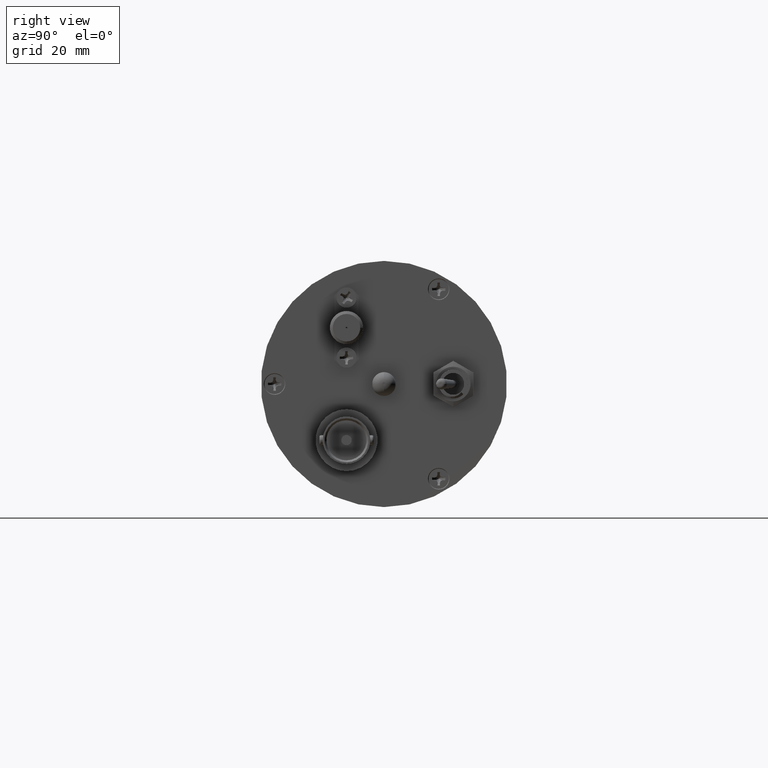
[diagram: clean part render]
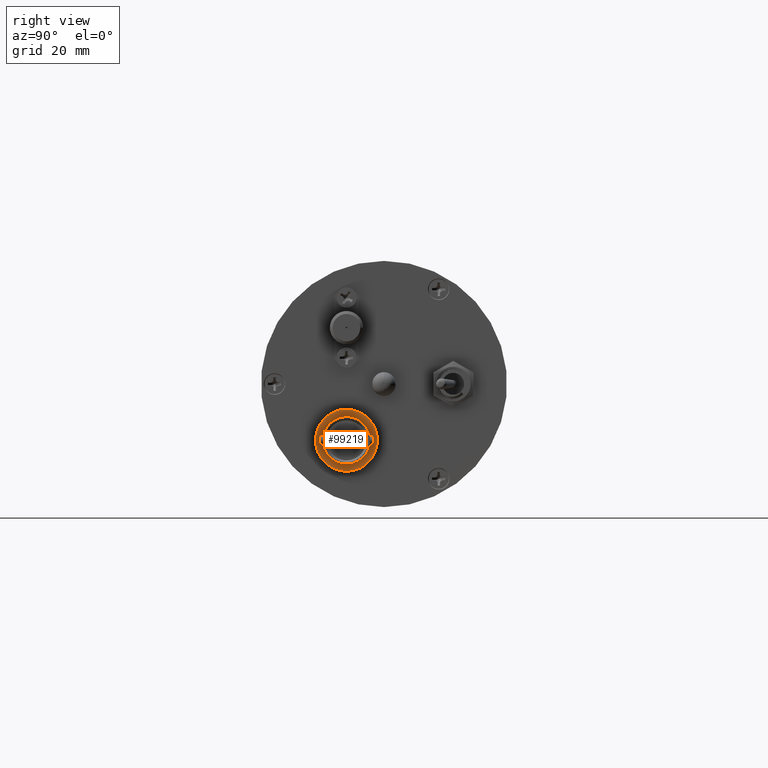
[diagram: same view with one face highlighted and labeled with its STEP entity id]
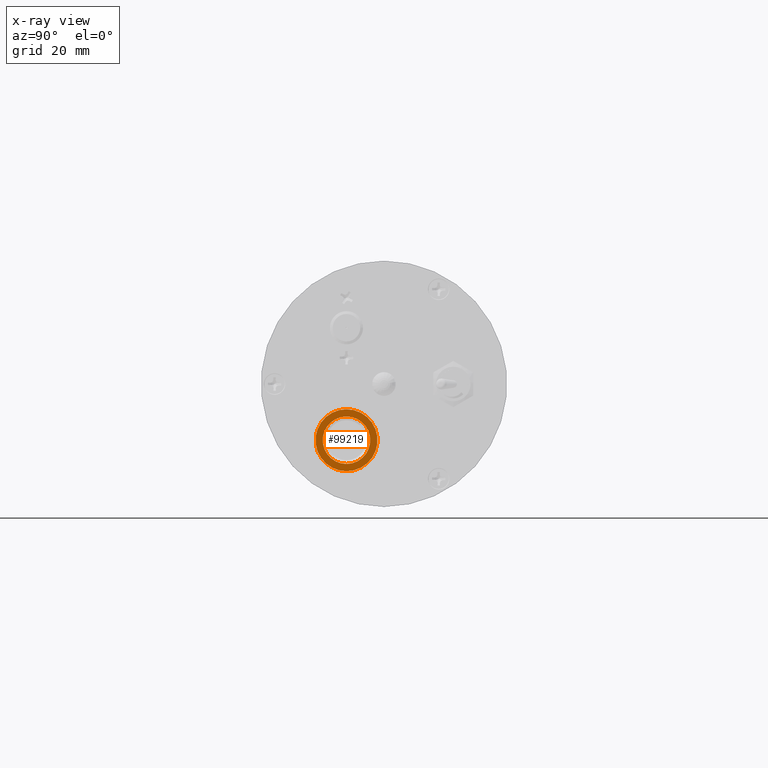
[diagram: x-ray of the same camera — body ghosted, the highlighted face saturated]
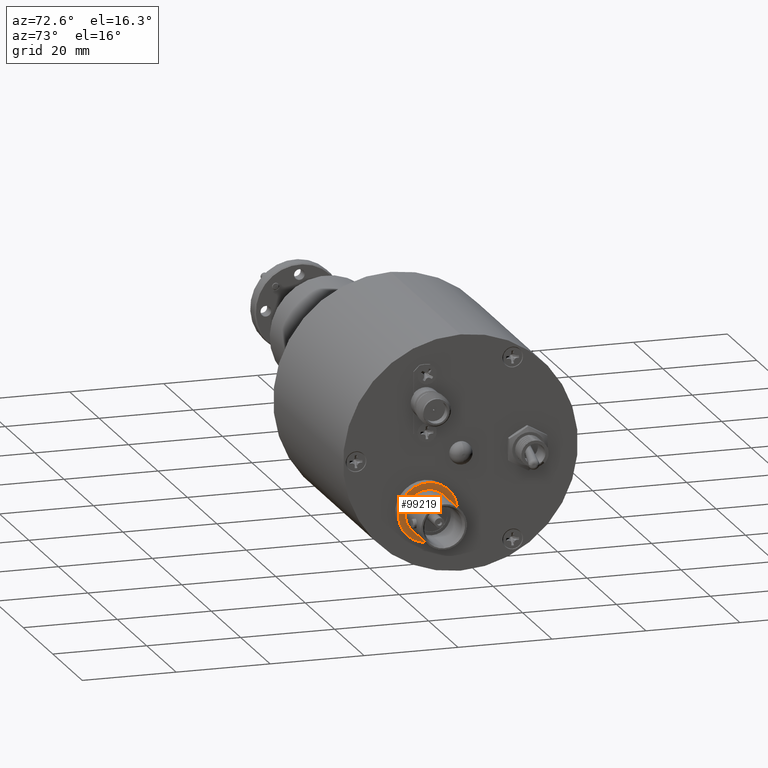
[diagram: same view with one face highlighted and labeled with its STEP entity id]
A machine part, right view. The second image highlights one B-rep face of the part: STEP entity #99219.
The next image is the same camera in x-ray: the body ghosted, the highlighted face saturated — about 0% of this face is hidden behind the body in this view.
A second angle (auxiliary view) of the same face is appended — the face is thin or edge-on in the first view.
In plain terms, the highlighted planar face has unit normal (1, -0, -0).
Its self-contained STEP definition (entity closure, byte-faithful):
#7550 = AXIS2_PLACEMENT_3D ( 'NONE', #43912, #60285, #11350 ) ;
#8683 = CARTESIAN_POINT ( 'NONE',  ( 56.62160839963394900, 27.16858904316375600, 18.90414442233091200 ) ) ;
#10347 = VERTEX_POINT ( 'NONE', #82108 ) ;
#11350 = DIRECTION ( 'NONE',  ( 0.0000000000000000000, 0.0000000000000000000, -1.000000000000000000 ) ) ;
#15147 = CIRCLE ( 'NONE', #104350, 4.826000000000000500 ) ;
#16058 = AXIS2_PLACEMENT_3D ( 'NONE', #69744, #69388, #84924 ) ;
#17792 = EDGE_LOOP ( 'NONE', ( #58907, #63210 ) ) ;
#19882 = EDGE_CURVE ( 'NONE', #10347, #94801, #72417, .T. ) ;
#21811 = DIRECTION ( 'NONE',  ( 0.0000000000000000000, 0.0000000000000000000, -1.000000000000000000 ) ) ;
#25808 = EDGE_CURVE ( 'NONE', #94801, #10347, #29337, .T. ) ;
#25886 = DIRECTION ( 'NONE',  ( 0.0000000000000000000, 0.0000000000000000000, -1.000000000000000000 ) ) ;
#27679 = DIRECTION ( 'NONE',  ( -1.000000000000000000, 2.775557561562890100E-017, -1.683656803805726100E-033 ) ) ;
#29337 = CIRCLE ( 'NONE', #7550, 6.294755000000003000 ) ;
#31894 = CARTESIAN_POINT ( 'NONE',  ( 56.62160839963394900, 27.16858904316375600, 25.19889942233091400 ) ) ;
#34734 = AXIS2_PLACEMENT_3D ( 'NONE', #31894, #71671, #38994 ) ;
#36413 = CIRCLE ( 'NONE', #34734, 4.826000000000000500 ) ;
#37193 = VERTEX_POINT ( 'NONE', #48535 ) ;
#38994 = DIRECTION ( 'NONE',  ( 0.0000000000000000000, 0.0000000000000000000, -1.000000000000000000 ) ) ;
#39092 = AXIS2_PLACEMENT_3D ( 'NONE', #84727, #27679, #25886 ) ;
#43912 = CARTESIAN_POINT ( 'NONE',  ( 56.62160839963394900, 27.16858904316375600, 25.19889942233091400 ) ) ;
#45177 = PLANE ( 'NONE',  #16058 ) ;
#48535 = CARTESIAN_POINT ( 'NONE',  ( 56.62160839963394900, 27.16858904316375600, 30.02489942233091500 ) ) ;
#58907 = ORIENTED_EDGE ( 'NONE', *, *, #62246, .T. ) ;
#60285 = DIRECTION ( 'NONE',  ( -1.000000000000000000, 2.775557561562890100E-017, -1.683656803805726100E-033 ) ) ;
#62246 = EDGE_CURVE ( 'NONE', #89553, #37193, #36413, .T. ) ;
#62285 = DIRECTION ( 'NONE',  ( -1.000000000000000000, 2.775557561562890100E-017, -1.683656803805726100E-033 ) ) ;
#63210 = ORIENTED_EDGE ( 'NONE', *, *, #103711, .T. ) ;
#69388 = DIRECTION ( 'NONE',  ( 1.000000000000000000, -2.775557561562890100E-017, -2.244875738407634100E-033 ) ) ;
#69744 = CARTESIAN_POINT ( 'NONE',  ( 56.62160839963394900, 27.16858904316375600, 25.19889942233091400 ) ) ;
#71671 = DIRECTION ( 'NONE',  ( -1.000000000000000000, 2.775557561562890100E-017, -1.683656803805726100E-033 ) ) ;
#72417 = CIRCLE ( 'NONE', #39092, 6.294755000000003000 ) ;
#72837 = ORIENTED_EDGE ( 'NONE', *, *, #25808, .F. ) ;
#73036 = FACE_BOUND ( 'NONE', #17792, .T. ) ;
#82108 = CARTESIAN_POINT ( 'NONE',  ( 56.62160839963394900, 27.16858904316375600, 31.49365442233091600 ) ) ;
#83363 = ORIENTED_EDGE ( 'NONE', *, *, #19882, .F. ) ;
#84727 = CARTESIAN_POINT ( 'NONE',  ( 56.62160839963394900, 27.16858904316375600, 25.19889942233091400 ) ) ;
#84924 = DIRECTION ( 'NONE',  ( -1.683656803805726100E-033, 2.022004307797137000E-017, -1.000000000000000000 ) ) ;
#89553 = VERTEX_POINT ( 'NONE', #100561 ) ;
#91092 = EDGE_LOOP ( 'NONE', ( #72837, #83363 ) ) ;
#94801 = VERTEX_POINT ( 'NONE', #8683 ) ;
#97039 = FACE_OUTER_BOUND ( 'NONE', #91092, .T. ) ;
#99219 = ADVANCED_FACE ( 'NONE', ( #73036, #97039 ), #45177, .T. ) ;
#100561 = CARTESIAN_POINT ( 'NONE',  ( 56.62160839963394900, 27.16858904316375600, 20.37289942233091400 ) ) ;
#102638 = CARTESIAN_POINT ( 'NONE',  ( 56.62160839963394900, 27.16858904316375600, 25.19889942233091400 ) ) ;
#103711 = EDGE_CURVE ( 'NONE', #37193, #89553, #15147, .T. ) ;
#104350 = AXIS2_PLACEMENT_3D ( 'NONE', #102638, #62285, #21811 ) ;